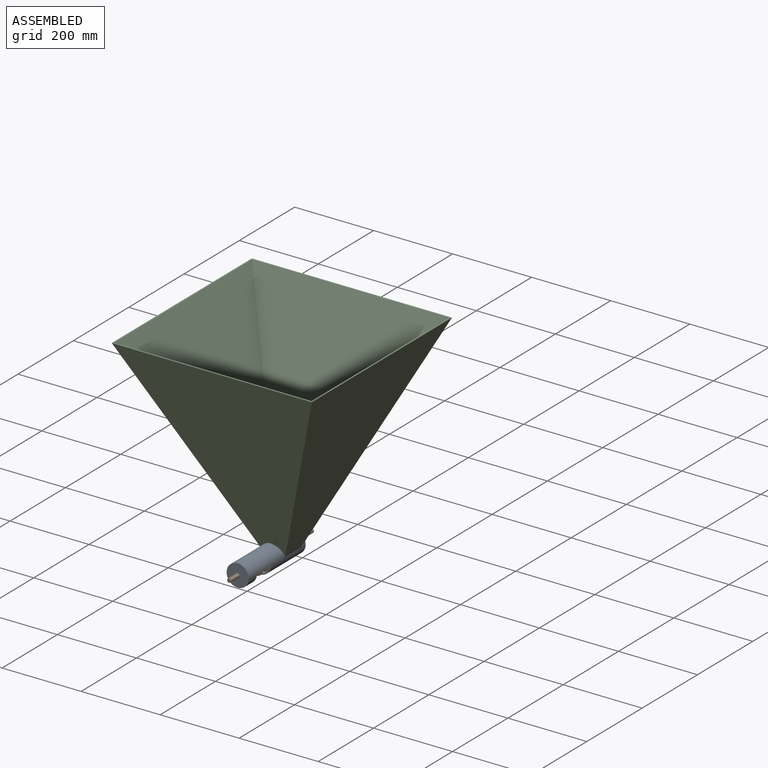
[diagram: assembled view]
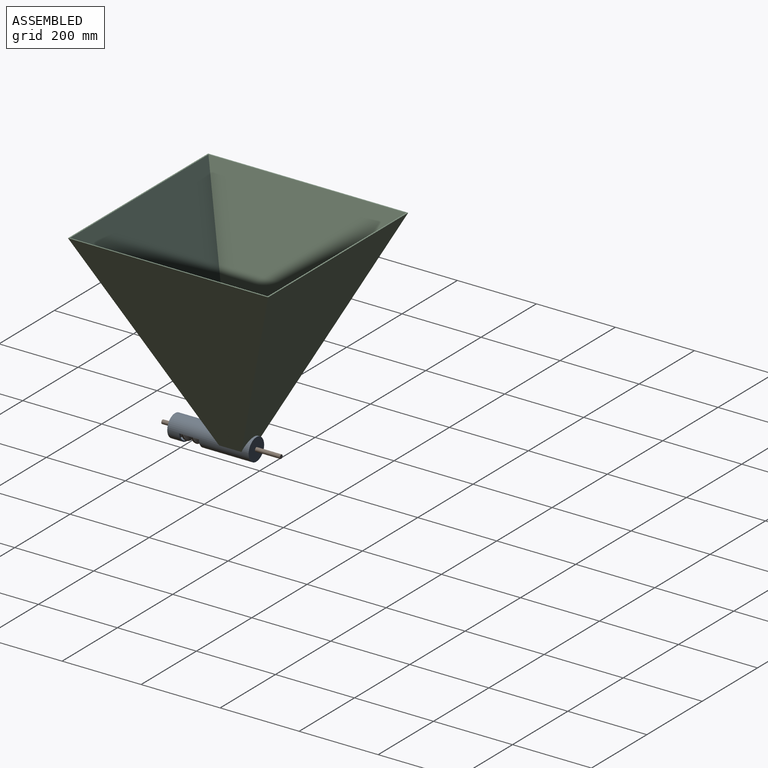
[diagram: assembled view, second angle]
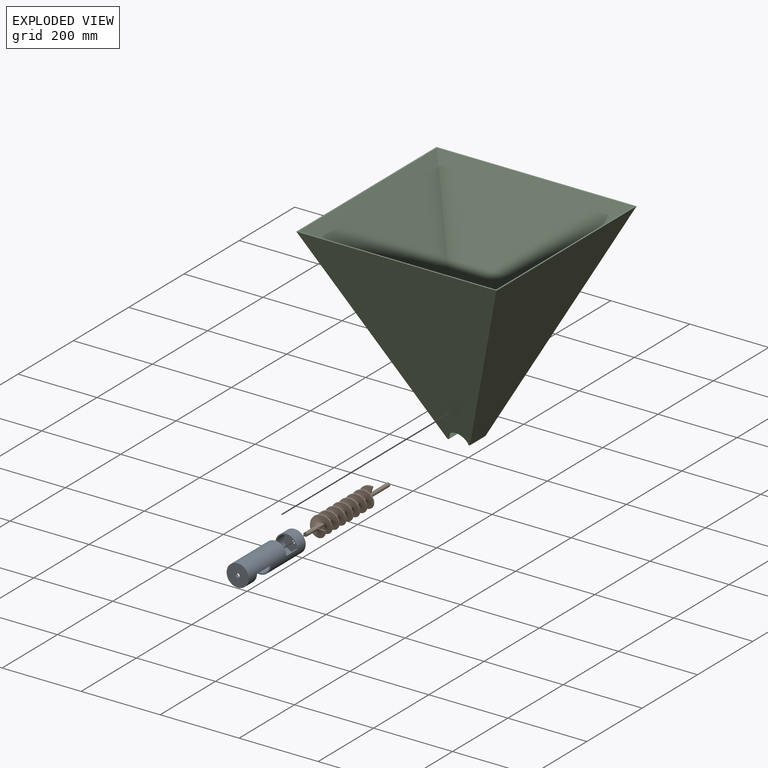
[diagram: exploded view]
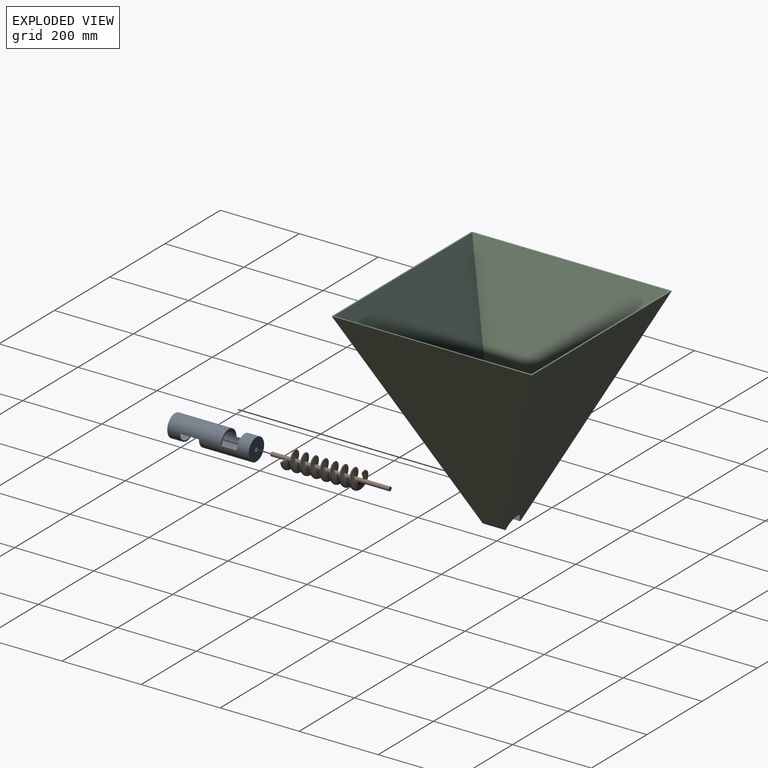
[diagram: exploded view, second angle]
ASSEMBLY  parts=3 mates=2
PART A: 16 faces, bbox 56x206x56 mm
  f0: cylinder r=25mm len=200mm, axis (0,1,0), area 24347.3mm2, adj f1,f2,f3,f4,f5,f6,f12,f13
  f1: plane 50x50mm, normal (0,1,0), area 1885mm2, adj f0,f11
  f2: plane 50x50mm, normal (0,-1,0), area 1885mm2, adj f0,f10
  f3: plane 56x28mm, normal (0,-1,0), area 249.8mm2, adj f0,f5,f6,f7
  f4: plane 56x28mm, normal (0,1,0), area 249.8mm2, adj f0,f5,f6,f7
  f5: plane 40x3mm, normal (0,0,1), area 120mm2, adj f0,f3,f4,f7
  f6: plane 40x3mm, normal (0,0,1), area 120mm2, adj f0,f3,f4,f7
  f7: cylinder r=28mm len=206mm, axis (0,1,0), area 28324.6mm2, adj f3,f4,f5,f6,f8,f9,f12,f13
  f8: plane 56x56mm, normal (0,-1,0), area 2384.5mm2, adj f7,f11
  f9: plane 56x56mm, normal (0,1,0), area 2384.5mm2, adj f7,f10
  f10: cylinder r=5mm len=10mm, axis (0,-1,0), area 94.2mm2, adj f2,f9
  f11: cylinder r=5mm len=10mm, axis (0,-1,0), area 94.2mm2, adj f1,f8
  f12: plane 56x28mm, normal (0,1,0), area 249.8mm2, adj f0,f7,f14,f15
  f13: plane 56x28mm, normal (0,-1,0), area 249.8mm2, adj f0,f7,f14,f15
  f14: plane 50x3mm, normal (0,0,-1), area 150mm2, adj f0,f7,f12,f13
  f15: plane 50x3mm, normal (0,0,-1), area 150mm2, adj f0,f7,f12,f13
PART B: 15 faces, bbox 54x300.4x51.4 mm
  f0: cylinder r=5mm len=62.5mm, axis (0,1,0), area 1570.8mm2, adj f7,f9,f10,f12
  f1: cylinder r=5mm len=109.5mm, axis (0,1,0), area 2971.9mm2, adj f2,f8,f11,f12,f13
  f2: cylinder r=5mm len=47mm, axis (0,1,0), area 691.2mm2, adj f1,f3,f12,f13
  f3: cylinder r=5mm len=47mm, axis (0,1,0), area 691.2mm2, adj f2,f4,f12,f13
  f4: cylinder r=5mm len=47mm, axis (0,1,0), area 691.2mm2, adj f3,f5,f12,f13
  f5: cylinder r=5mm len=47mm, axis (0,1,0), area 691.2mm2, adj f4,f6,f12,f13
  f6: cylinder r=5mm len=47mm, axis (0,1,0), area 691.2mm2, adj f5,f7,f12,f13
  f7: cylinder r=5mm len=47mm, axis (0,1,0), area 691.2mm2, adj f0,f6,f12,f13
  f8: plane 10x10mm, normal (0,-1,0), area 78.5mm2, adj f1
  f9: plane 10x10mm, normal (0,1,0), area 78.5mm2, adj f0
  f10: plane 19.43x3.43mm, normal (-1,0,0), area 56mm2, adj f0,f12,f13,f14
  f11: plane 18.5x6.3mm, normal (0.31,0,-0.95), area 56mm2, adj f1,f12,f13,f14
  f12: bspline ~197.5x47.32mm, area 12303.2mm2, adj f0,f1,f2,f3,f4,f5,f6,f7
  f13: bspline ~197.5x47.32mm, area 12346.7mm2, adj f1,f2,f3,f4,f5,f6,f7,f10
  f14: bspline ~200.5x53.62mm, area 5437.6mm2, adj f10,f11,f12,f13
PART C: 13 faces, bbox 506.6x506.6x500 mm
  f0: plane 56.58x3.29mm, normal (0,0,-1), area 186.1mm2, adj f3,f4,f5,f8,f11,f12
  f1: plane 56.58x3.29mm, normal (0,0,-1), area 186.1mm2, adj f3,f5,f6,f10,f11,f12
  f2: plane 506.58x506.58mm, normal (0,0,1), area 6622.8mm2, adj f3,f4,f5,f6,f7,f8,f9,f10
  f3: plane 506.58x500mm, normal (0,0.91,-0.41), area 153311.5mm2, adj f0,f1,f2,f4,f6,f12
  f4: plane 506.58x500mm, normal (-0.91,0,-0.41), area 154388mm2, adj f0,f2,f3,f5
  f5: plane 506.58x500mm, normal (0,-0.91,-0.41), area 153311.5mm2, adj f0,f1,f2,f4,f6,f11
  f6: plane 506.58x500mm, normal (0.91,0,-0.41), area 154388mm2, adj f1,f2,f3,f5
  f7: plane 500x500mm, normal (0,-0.91,0.41), area 149704mm2, adj f2,f8,f10,f12
  f8: plane 500x500mm, normal (0.91,0,0.41), area 150780.5mm2, adj f0,f2,f7,f9
  f9: plane 500x500mm, normal (0,0.91,0.41), area 149704mm2, adj f2,f8,f10,f11
  f10: plane 500x500mm, normal (-0.91,0,0.41), area 150780.5mm2, adj f1,f2,f7,f9
  f11: cylinder r=25mm len=50mm, axis (0,-1,0), area 258.4mm2, adj f0,f1,f5,f9
  f12: cylinder r=25mm len=50mm, axis (0,-1,0), area 258.4mm2, adj f0,f1,f3,f7
PLACE A t=(390.75,582.17,219.87)mm
PLACE B rot(axis=(0.71,0,-0.71),180deg) t=(390.75,347.99,219.87)mm
PLACE C t=(390.75,538.85,219.87)mm fixed
MATE fastened C.f11 <-> A.f10  axis (0,-1,0) through (390.75,535.17,219.87)mm
MATE cylindrical A.f0 <-> B.f0  axis (0,1,0) through (390.75,482.17,219.87)mm
